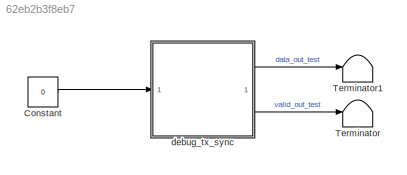
MODEL slx_62eb2b3f8eb7
KIND model
CONFIG AbsTol = auto
CONFIG EnableMultiTasking = off
CONFIG FixedStep = auto
CONFIG MaxStep = auto
CONFIG MinStep = auto
CONFIG RelTol = 1e-3
CONFIG SampleTimeConstraint = Unconstrained
CONFIG SolverName = FixedStepDiscrete
CONFIG StartTime = 0.0
CONFIG StopTime = 10.0
BLOCK [Constant] Constant
  OutDataTypeStr = int16
  SampleTime = -1
  Value = 0
BLOCK [Terminator] Terminator
BLOCK [Terminator] Terminator1
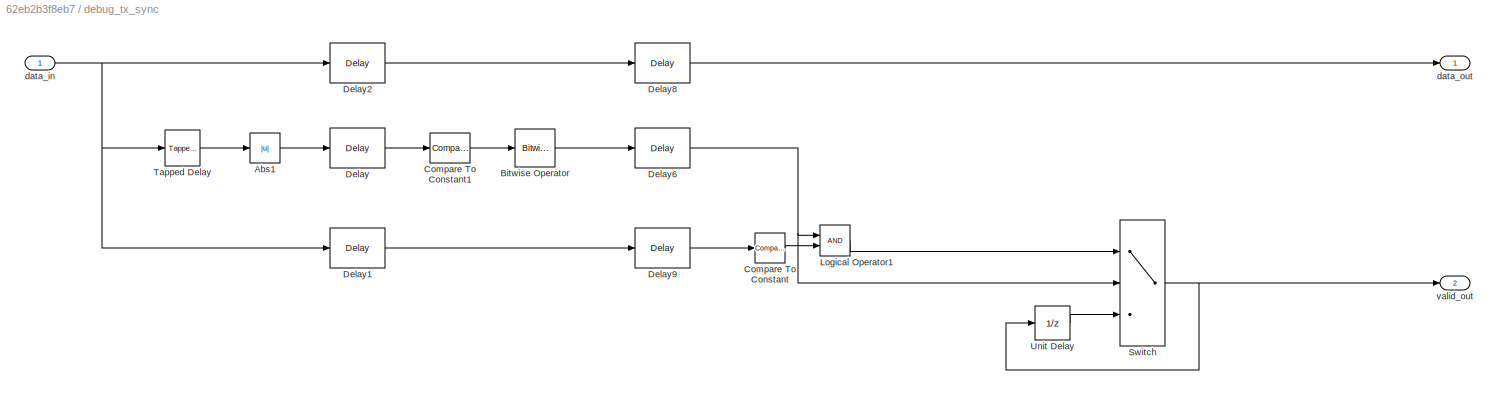
BLOCK [SubSystem] debug_tx_sync
  TreatAsAtomicUnit = on
BLOCK [Abs] debug_tx_sync/Abs1
  SaturateOnIntegerOverflow = off
BLOCK [Reference] debug_tx_sync/Bitwise Operator  REF=simulink/Logic and Bit
Operations/Bitwise
Operator
  LibrarySourceBlock = hdlsllib/Logic and Bit\nOperations/Bitwise\nOperator
  SourceBlock = simulink/Logic and Bit\nOperations/Bitwise\nOperator
  SourceType = Bitwise Operator
BLOCK [Reference] debug_tx_sync/Compare To Constant  REF=hdlsllib/Logic and Bit
Operations/Compare
To Constant
  SourceBlock = hdlsllib/Logic and Bit\nOperations/Compare\nTo Constant
  SourceType = Compare To Constant
BLOCK [Reference] debug_tx_sync/Compare To Constant1  REF=hdlsllib/Logic and Bit
Operations/Compare
To Constant
  SourceBlock = hdlsllib/Logic and Bit\nOperations/Compare\nTo Constant
  SourceType = Compare To Constant
BLOCK [Delay] debug_tx_sync/Delay
  DelayLength = 1
  InitialCondition = 0
  InputPortMap = u0
  UseCircularBuffer = on
  UserDataPersistent = on
BLOCK [Delay] debug_tx_sync/Delay1
  DelayLength = 1
  InitialCondition = 0
  InputPortMap = u0
  UseCircularBuffer = on
  UserDataPersistent = on
BLOCK [Delay] debug_tx_sync/Delay2
  DelayLength = 1
  InitialCondition = 0
  InputPortMap = u0
  UseCircularBuffer = on
  UserDataPersistent = on
BLOCK [Delay] debug_tx_sync/Delay6
  DelayLength = 1
  InitialCondition = 0
  InputPortMap = u0
  UseCircularBuffer = on
  UserDataPersistent = on
BLOCK [Delay] debug_tx_sync/Delay8
  DelayLength = 1
  InitialCondition = 0
  InputPortMap = u0
  UseCircularBuffer = on
  UserDataPersistent = on
BLOCK [Delay] debug_tx_sync/Delay9
  DelayLength = 1
  InitialCondition = 0
  InputPortMap = u0
  UseCircularBuffer = on
  UserDataPersistent = on
BLOCK [Logic] debug_tx_sync/Logical Operator1
  AllPortsSameDT = off
  OutDataTypeStr = boolean
BLOCK [Switch] debug_tx_sync/Switch
  Criteria = u2 ~= 0
  InputSameDT = off
  SaturateOnIntegerOverflow = off
BLOCK [Reference] debug_tx_sync/Tapped Delay  REF=simulink/Discrete/Tapped Delay
  LibrarySourceBlock = hdlsllib/Discrete/Tapped Delay
  SourceBlock = simulink/Discrete/Tapped Delay
  SourceType = Tapped Delay Line
BLOCK [UnitDelay] debug_tx_sync/Unit Delay
  HasFrameUpgradeWarning = on
  SampleTime = -1
BLOCK [Inport] debug_tx_sync/data_in
BLOCK [Outport] debug_tx_sync/data_out
BLOCK [Outport] debug_tx_sync/valid_out
  Port = 2
LINE Constant:1 -> debug_tx_sync:1
LINE debug_tx_sync/Abs1:1 -> debug_tx_sync/Delay:1
LINE debug_tx_sync/Bitwise Operator:1 -> debug_tx_sync/Delay6:1
LINE debug_tx_sync/Compare To Constant1:1 -> debug_tx_sync/Bitwise Operator:1
LINE debug_tx_sync/Compare To Constant:1 -> debug_tx_sync/Logical Operator1:2
LINE debug_tx_sync/Delay1:1 -> debug_tx_sync/Delay9:1
LINE debug_tx_sync/Delay2:1 -> debug_tx_sync/Delay8:1
NET debug_tx_sync/Delay6:1 -> debug_tx_sync/Logical Operator1:1, debug_tx_sync/Switch:2
LINE debug_tx_sync/Delay8:1 -> debug_tx_sync/data_out:1
LINE debug_tx_sync/Delay9:1 -> debug_tx_sync/Compare To Constant:1
LINE debug_tx_sync/Delay:1 -> debug_tx_sync/Compare To Constant1:1
LINE debug_tx_sync/Logical Operator1:1 -> debug_tx_sync/Switch:1
NET debug_tx_sync/Switch:1 -> debug_tx_sync/Unit Delay:1, debug_tx_sync/valid_out:1
LINE debug_tx_sync/Tapped Delay:1 -> debug_tx_sync/Abs1:1
LINE debug_tx_sync/Unit Delay:1 -> debug_tx_sync/Switch:3
NET debug_tx_sync/data_in:1 -> debug_tx_sync/Delay1:1, debug_tx_sync/Delay2:1, debug_tx_sync/Tapped Delay:1
LINE debug_tx_sync:1 -> Terminator1:1
LINE debug_tx_sync:2 -> Terminator:1
note: NET lines group one-source signal fan-out (src -> all destinations, sorted); 1:1 wires keep LINE
